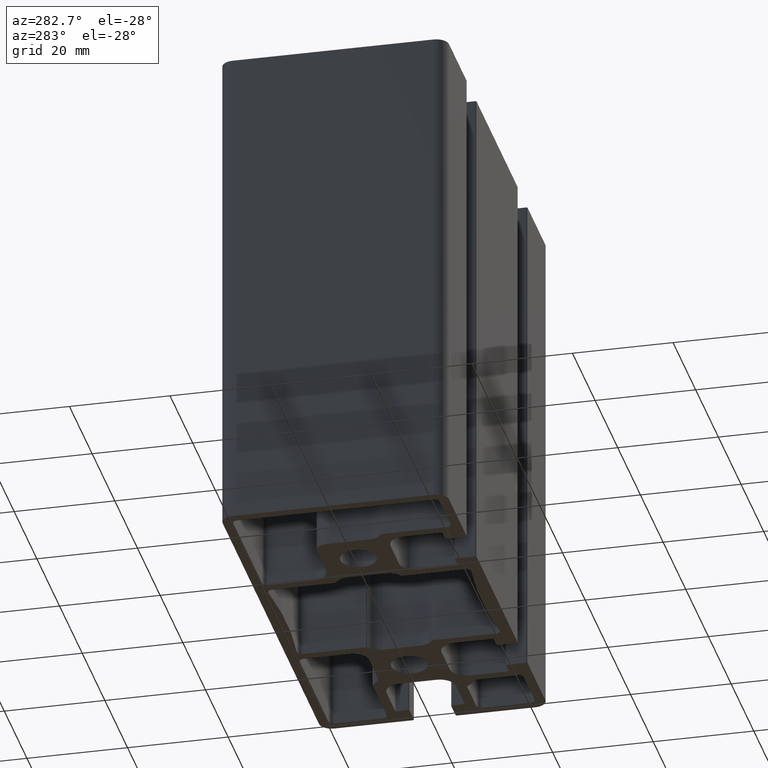
[diagram: clean part render]
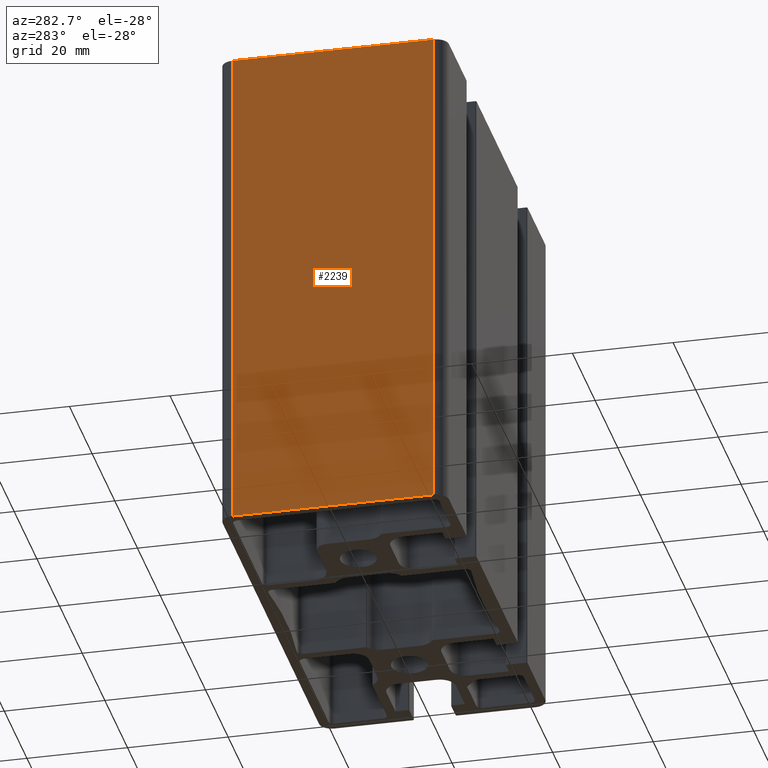
[diagram: same view with one face highlighted and labeled with its STEP entity id]
A machine part, auxiliary view. The second image highlights one B-rep face of the part: STEP entity #2239.
In plain terms, the highlighted planar face has unit normal (-1, 0, 0).
Its self-contained STEP definition (entity closure, byte-faithful):
#84=PLANE('',#2457);
#194=FACE_OUTER_BOUND('',#314,.T.);
#314=EDGE_LOOP('',(#1950,#1951,#1952,#1953));
#536=LINE('',#3753,#758);
#541=LINE('',#3767,#763);
#542=LINE('',#3771,#764);
#543=LINE('',#3772,#765);
#758=VECTOR('',#3085,40.);
#763=VECTOR('',#3100,100.);
#764=VECTOR('',#3105,100.);
#765=VECTOR('',#3106,40.);
#1087=VERTEX_POINT('',#3750);
#1088=VERTEX_POINT('',#3752);
#1092=VERTEX_POINT('',#3766);
#1093=VERTEX_POINT('',#3770);
#1407=EDGE_CURVE('',#1088,#1087,#536,.T.);
#1414=EDGE_CURVE('',#1092,#1088,#541,.T.);
#1416=EDGE_CURVE('',#1093,#1087,#542,.T.);
#1417=EDGE_CURVE('',#1092,#1093,#543,.T.);
#1950=ORIENTED_EDGE('',*,*,#1407,.T.);
#1951=ORIENTED_EDGE('',*,*,#1416,.F.);
#1952=ORIENTED_EDGE('',*,*,#1417,.F.);
#1953=ORIENTED_EDGE('',*,*,#1414,.T.);
#2239=ADVANCED_FACE('',(#194),#84,.T.);
#2457=AXIS2_PLACEMENT_3D('',#3769,#3103,#3104);
#3085=DIRECTION('',(0.,1.,0.));
#3100=DIRECTION('',(0.,0.,1.));
#3103=DIRECTION('center_axis',(-1.,0.,0.));
#3104=DIRECTION('ref_axis',(0.,-1.,0.));
#3105=DIRECTION('',(0.,0.,1.));
#3106=DIRECTION('',(0.,1.,0.));
#3750=CARTESIAN_POINT('',(-45.,20.,100.));
#3752=CARTESIAN_POINT('',(-45.,-20.,100.));
#3753=CARTESIAN_POINT('',(-45.,10.,100.));
#3766=CARTESIAN_POINT('',(-45.,-20.,0.));
#3767=CARTESIAN_POINT('',(-45.,-20.,0.));
#3769=CARTESIAN_POINT('Origin',(-45.,20.,0.));
#3770=CARTESIAN_POINT('',(-45.,20.,0.));
#3771=CARTESIAN_POINT('',(-45.,20.,0.));
#3772=CARTESIAN_POINT('',(-45.,10.,0.));